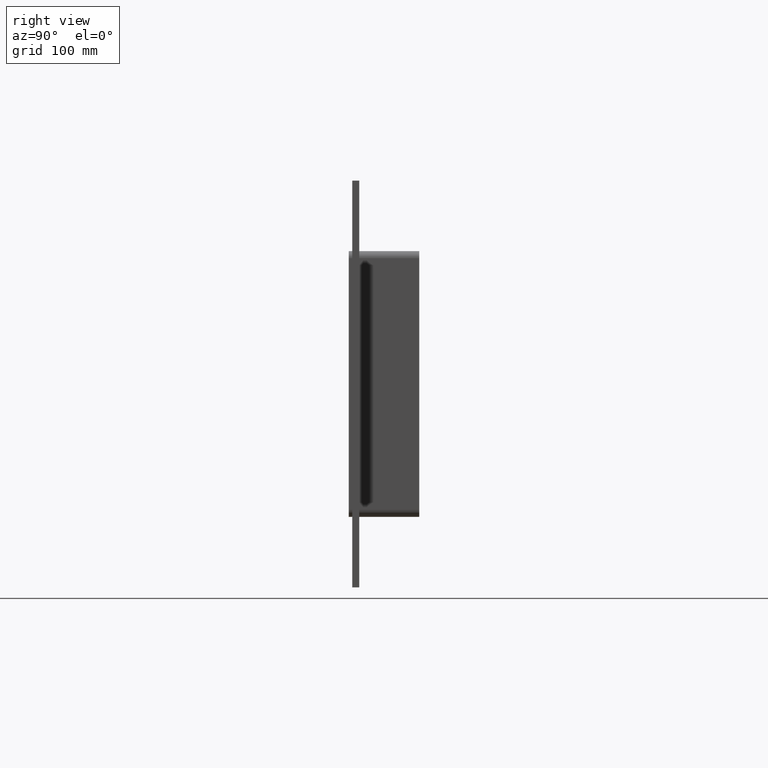
[diagram: clean part render]
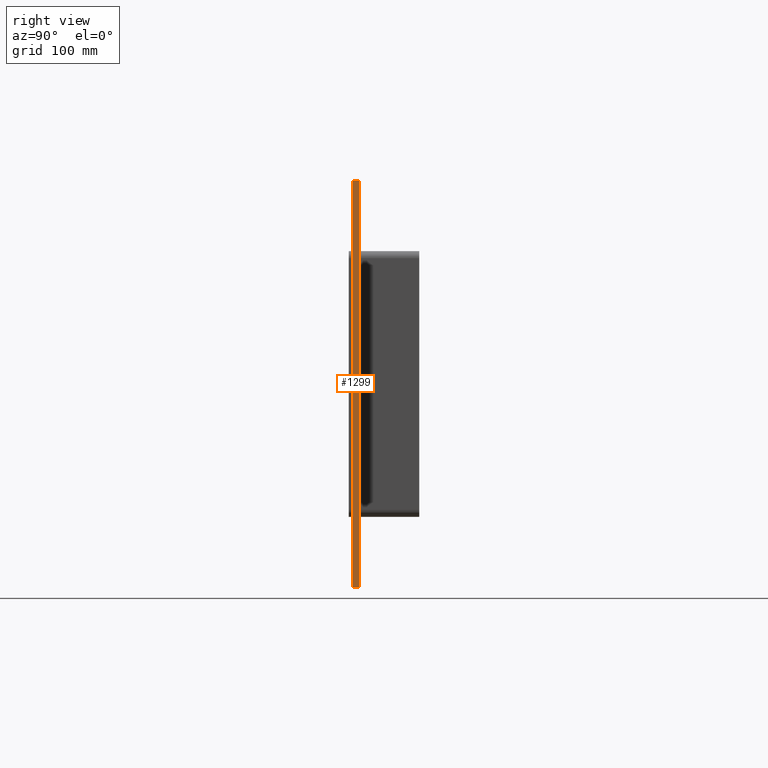
[diagram: same view with one face highlighted and labeled with its STEP entity id]
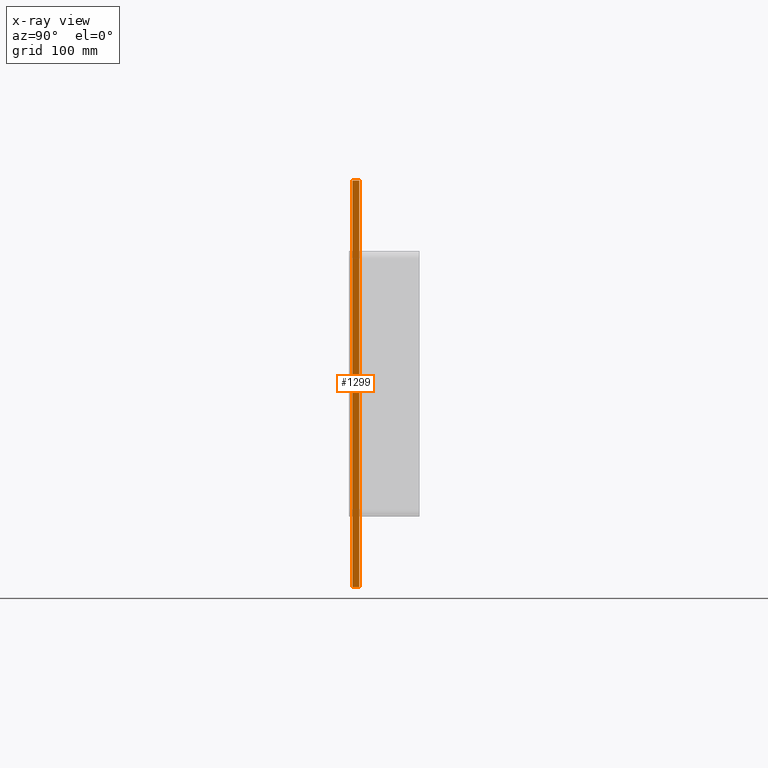
[diagram: x-ray of the same camera — body ghosted, the highlighted face saturated]
A machine part, right view. The second image highlights one B-rep face of the part: STEP entity #1299.
The next image is the same camera in x-ray: the body ghosted, the highlighted face saturated — about 0% of this face is hidden behind the body in this view.
In plain terms, the highlighted planar face has unit normal (1, 0, 0).
Its self-contained STEP definition (entity closure, byte-faithful):
#1031=CARTESIAN_POINT('',(256.75000000000006,6.000000000000001,173.00000000000006));
#1032=VERTEX_POINT('',#1031);
#1039=CARTESIAN_POINT('',(256.75000000000006,6.000000000000001,-173.00000000000006));
#1040=VERTEX_POINT('',#1039);
#1041=CARTESIAN_POINT('',(256.75000000000006,6.000000000000001,173.00000000000006));
#1042=DIRECTION('',(0.0,0.0,-1.0));
#1043=VECTOR('',#1042,346.00000000000011);
#1044=LINE('',#1041,#1043);
#1045=EDGE_CURVE('',#1032,#1040,#1044,.T.);
#1141=CARTESIAN_POINT('',(256.75000000000006,0.0,173.00000000000006));
#1142=VERTEX_POINT('',#1141);
#1157=CARTESIAN_POINT('',(256.75000000000006,0.0,-173.0));
#1158=VERTEX_POINT('',#1157);
#1165=CARTESIAN_POINT('',(256.75000000000006,0.0,173.00000000000006));
#1166=DIRECTION('',(0.0,0.0,-1.0));
#1167=VECTOR('',#1166,346.00000000000011);
#1168=LINE('',#1165,#1167);
#1169=EDGE_CURVE('',#1142,#1158,#1168,.T.);
#1274=CARTESIAN_POINT('',(256.75000000000006,0.0,-173.0));
#1275=DIRECTION('',(0.0,1.0,0.0));
#1276=VECTOR('',#1275,6.000000000000001);
#1277=LINE('',#1274,#1276);
#1278=EDGE_CURVE('',#1158,#1040,#1277,.T.);
#1283=CARTESIAN_POINT('',(256.75000000000006,0.0,173.00000000000006));
#1284=DIRECTION('',(1.0,0.0,0.0));
#1285=DIRECTION('',(0.0,0.0,-1.0));
#1286=AXIS2_PLACEMENT_3D('',#1283,#1284,#1285);
#1287=PLANE('',#1286);
#1288=ORIENTED_EDGE('',*,*,#1169,.T.);
#1289=ORIENTED_EDGE('',*,*,#1278,.T.);
#1290=ORIENTED_EDGE('',*,*,#1045,.F.);
#1291=CARTESIAN_POINT('',(256.75000000000006,0.0,173.00000000000006));
#1292=DIRECTION('',(0.0,1.0,0.0));
#1293=VECTOR('',#1292,6.000000000000001);
#1294=LINE('',#1291,#1293);
#1295=EDGE_CURVE('',#1142,#1032,#1294,.T.);
#1296=ORIENTED_EDGE('',*,*,#1295,.F.);
#1297=EDGE_LOOP('',(#1288,#1289,#1290,#1296));
#1298=FACE_OUTER_BOUND('',#1297,.T.);
#1299=ADVANCED_FACE('',(#1298),#1287,.T.);